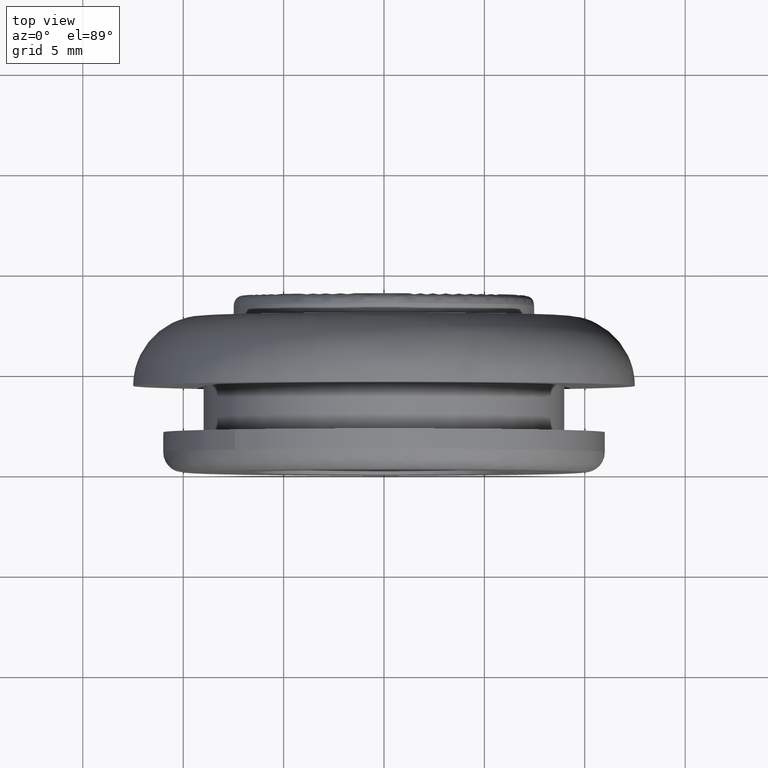
[diagram: clean part render]
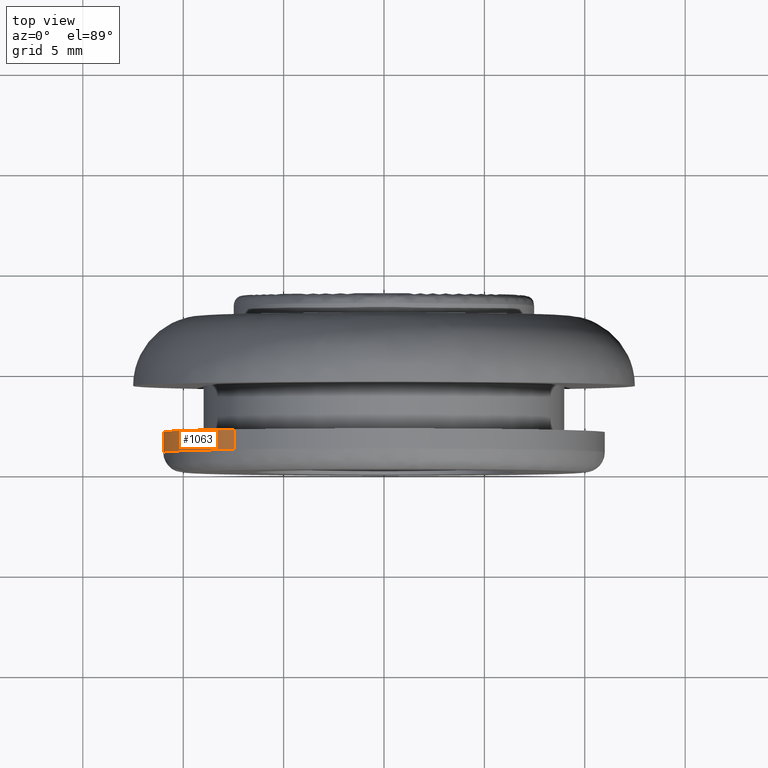
[diagram: same view with one face highlighted and labeled with its STEP entity id]
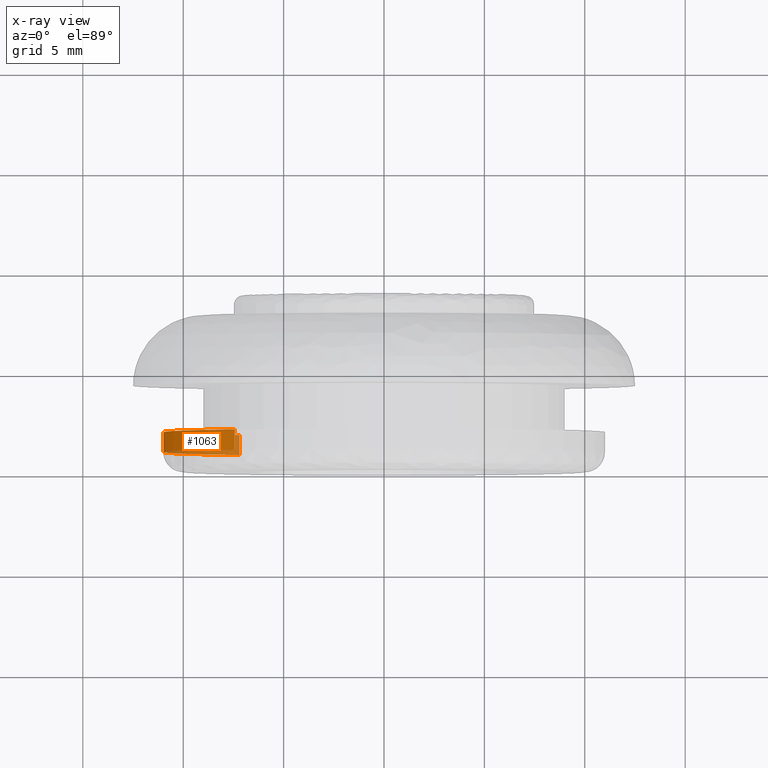
[diagram: x-ray of the same camera — body ghosted, the highlighted face saturated]
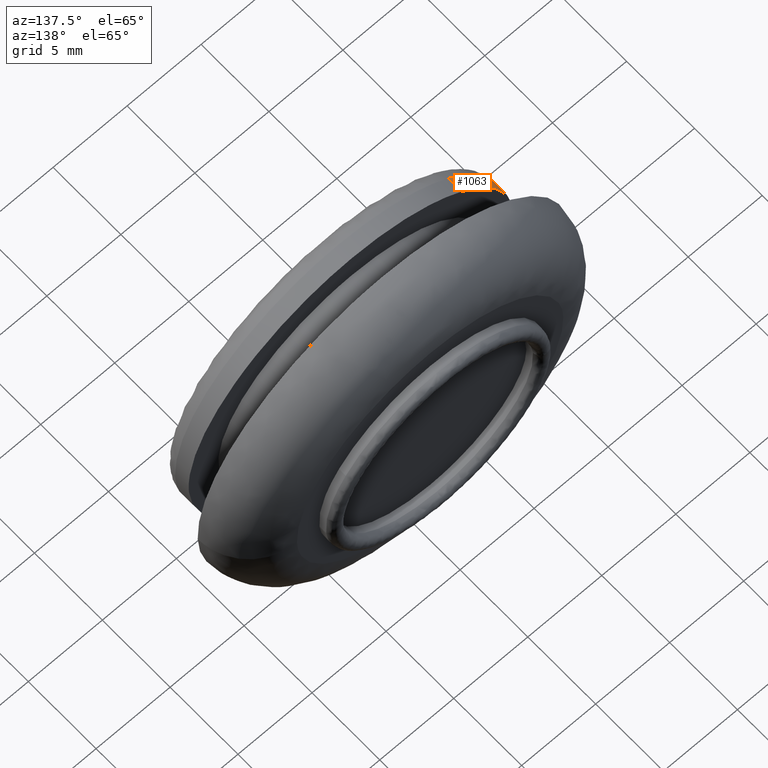
[diagram: same view with one face highlighted and labeled with its STEP entity id]
A machine part, top view. The second image highlights one B-rep face of the part: STEP entity #1063.
The next image is the same camera in x-ray: the body ghosted, the highlighted face saturated — about 20% of this face is hidden behind the body in this view.
A second angle (auxiliary view) of the same face is appended — the face is thin or edge-on in the first view.
In plain terms, the highlighted face is a freeform B-spline surface patch.
Its self-contained STEP definition (entity closure, byte-faithful):
#870=CARTESIAN_POINT('',(-7.197734554998251,2.000000000000016,-8.318205335465244));
#871=VERTEX_POINT('',#870);
#904=CARTESIAN_POINT('',(-7.431490496900658,2.0,8.110051629594068));
#905=VERTEX_POINT('',#904);
#919=CARTESIAN_POINT('',(-7.431490477047690,0.999999999970231,8.110051647784873));
#920=VERTEX_POINT('',#919);
#921=CARTESIAN_POINT('',(-7.431490496900658,2.0,8.110051629594068));
#922=CARTESIAN_POINT('',(-7.431490477047690,0.999999999970231,8.110051647784873));
#923=QUASI_UNIFORM_CURVE('',1,(#921,#922),.UNSPECIFIED.,.F.,.U.);
#924=EDGE_CURVE('',#905,#920,#923,.T.);
#973=CARTESIAN_POINT('',(-7.197734559376409,1.000000000000012,-8.318205331676833));
#974=VERTEX_POINT('',#973);
#988=CARTESIAN_POINT('',(-7.197734554998251,2.000000000000016,-8.318205335465244));
#989=CARTESIAN_POINT('',(-7.197734559376409,1.000000000000012,-8.318205331676833));
#990=QUASI_UNIFORM_CURVE('',1,(#988,#989),.UNSPECIFIED.,.F.,.U.);
#991=EDGE_CURVE('',#871,#974,#990,.T.);
#996=CARTESIAN_POINT('',(-7.431490932591846,2.025000000002764,8.110051230356689));
#997=CARTESIAN_POINT('',(-15.541540162948534,2.025000000002765,0.678560297764843));
#998=CARTESIAN_POINT('',(-8.110049230356687,2.025000000002764,-7.431488932591844));
#999=CARTESIAN_POINT('',(-7.679573956652948,2.025000000002764,-7.901270258284855));
#1000=CARTESIAN_POINT('',(-7.197734918350435,2.025000000002764,-8.318205021057047));
#1001=CARTESIAN_POINT('',(-7.431490932591846,0.974374999886598,8.110051230356689));
#1002=CARTESIAN_POINT('',(-15.541540162948534,0.974374999886598,0.678560297764843));
#1003=CARTESIAN_POINT('',(-8.110049230356687,0.974374999886598,-7.431488932591844));
#1004=CARTESIAN_POINT('',(-7.679573956652948,0.974374999886598,-7.901270258284855));
#1005=CARTESIAN_POINT('',(-7.197734918350435,0.974374999886598,-8.318205021057047));
#1013=(BOUNDED_SURFACE()B_SPLINE_SURFACE(2,1,((#996,#1001),(#997,#1002),(#998,#1003),(#999,#1004),(#1000,#1005)),.UNSPECIFIED.,.F.,.F.,.U.)B_SPLINE_SURFACE_WITH_KNOTS((3,2,3),(2,2),(0.0,18.225393430707680,19.683424905164291),(0.0,1.0),.UNSPECIFIED.)GEOMETRIC_REPRESENTATION_ITEM()RATIONAL_B_SPLINE_SURFACE(((1.0,1.0),(0.707106781186548,0.707106781186548),(1.0,1.0),(0.976568542494924,0.976568542494924),(0.956886118190660,0.956886118190660)))REPRESENTATION_ITEM('')SURFACE());
#1014=CARTESIAN_POINT('',(-7.431490496900658,2.000000000000000,8.110051629594068));
#1015=CARTESIAN_POINT('',(-10.999998000000000,2.000000000000000,4.840117665147869));
#1016=CARTESIAN_POINT('',(-10.999998000000000,2.0,0.000002000000002));
#1017=CARTESIAN_POINT('',(-10.999998000000000,2.0,-5.028111753327885));
#1018=CARTESIAN_POINT('',(-7.197734554998251,2.000000000000016,-8.318205335465244));
#1026=(BOUNDED_CURVE()B_SPLINE_CURVE(2,(#1014,#1015,#1016,#1017,#1018),.UNSPECIFIED.,.F.,.U.)B_SPLINE_CURVE_WITH_KNOTS((3,2,3),(0.618415192864190,0.750000000000000,0.885882133147832),.UNSPECIFIED.)CURVE()GEOMETRIC_REPRESENTATION_ITEM()RATIONAL_B_SPLINE_CURVE((0.853959782840026,0.845838809164181,1.0,0.840804178572373,0.854663299575205))REPRESENTATION_ITEM(''));
#1027=EDGE_CURVE('',#905,#871,#1026,.T.);
#1028=ORIENTED_EDGE('',*,*,#1027,.T.);
#1029=ORIENTED_EDGE('',*,*,#991,.T.);
#1030=CARTESIAN_POINT('',(-10.996524082747710,0.999999999889432,0.276432999624792));
#1031=VERTEX_POINT('',#1030);
#1032=CARTESIAN_POINT('',(-10.996524082747715,0.999999999889432,0.276432999624792));
#1033=CARTESIAN_POINT('',(-10.999998000000000,1.000000000000012,0.138239328231385));
#1034=CARTESIAN_POINT('',(-10.999998000000000,1.000000000000012,0.000002000000002));
#1035=CARTESIAN_POINT('',(-10.999998000000001,1.000000000000012,-5.028111746328487));
#1036=CARTESIAN_POINT('',(-7.197734559376409,1.000000000000012,-8.318205331676833));
#1044=(BOUNDED_CURVE()B_SPLINE_CURVE(2,(#1032,#1033,#1034,#1035,#1036),.UNSPECIFIED.,.F.,.U.)B_SPLINE_CURVE_WITH_KNOTS((3,2,3),(0.745579891769544,0.750000000000000,0.885882132988790),.UNSPECIFIED.)CURVE()GEOMETRIC_REPRESENTATION_ITEM()RATIONAL_B_SPLINE_CURVE((0.989826157680981,0.994821521091512,1.0,0.840804178758703,0.854663299542762))REPRESENTATION_ITEM(''));
#1045=EDGE_CURVE('',#1031,#974,#1044,.T.);
#1046=ORIENTED_EDGE('',*,*,#1045,.F.);
#1047=CARTESIAN_POINT('',(-7.431490477047690,0.999999999970231,8.110051647784873));
#1048=CARTESIAN_POINT('',(-10.879015210831597,0.999999999937635,4.950977973515384));
#1049=CARTESIAN_POINT('',(-10.996524082747710,0.999999999889432,0.276432999624792));
#1057=(BOUNDED_CURVE()B_SPLINE_CURVE(2,(#1047,#1048,#1049),.UNSPECIFIED.,.F.,.U.)B_SPLINE_CURVE_WITH_KNOTS((3,3),(0.618415192125104,0.745579891769545),.UNSPECIFIED.)CURVE()GEOMETRIC_REPRESENTATION_ITEM()RATIONAL_B_SPLINE_CURVE((0.853959782931254,0.846111602607860,0.989826157680983))REPRESENTATION_ITEM(''));
#1058=EDGE_CURVE('',#920,#1031,#1057,.T.);
#1059=ORIENTED_EDGE('',*,*,#1058,.F.);
#1060=ORIENTED_EDGE('',*,*,#924,.F.);
#1061=EDGE_LOOP('',(#1028,#1029,#1046,#1059,#1060));
#1062=FACE_OUTER_BOUND('',#1061,.T.);
#1063=ADVANCED_FACE('',(#1062),#1013,.T.);